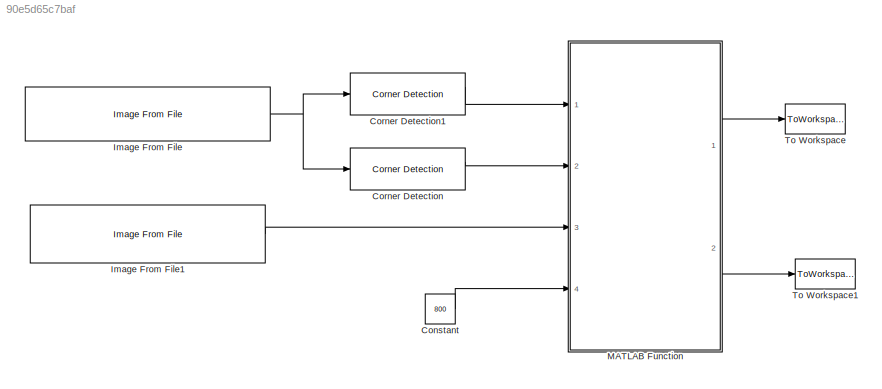
MODEL slx_90e5d65c7baf
KIND model
BLOCK [Constant] Constant
  Value = 800
BLOCK [Reference] Corner Detection  REF=visionanalysis/Corner Detection
  LockScale = off
  Ports = [1, 2]
  SourceBlock = visionanalysis/Corner Detection
  SourceType = Corner Detection
  accumFracLength = 0
  accumMode = Binary point scaling
  accumWordLength = 32
  factor = 0.04
  filter = fspecial('gaussian', [1 5], 1.5)
  firstCoeffFracLength = 16
  firstCoeffMode = Specify word length
  firstCoeffWordLength = 16
  isOutVarDim = off
  maxNum = 50
  memoryFracLength = 0
  memoryMode = Binary point scaling
  memoryWordLength = 32
  method = Minimum eigenvalue (Shi & Tomasi)
  neighborSize = [11 11]
  output = Obsolete9b
  outputFracLength = 0
  outputInUse = Corner location
  outputMode = Same as accumulator
  outputWordLength = 32
  overflowMode = off
  prodOutputFracLength = 0
  prodOutputMode = Binary point scaling
  prodOutputWordLength = 32
  roundingMode = Floor
  thrAngle = 157.5
  thrInten = 0.1
  thrMetric = 0.0005
BLOCK [Reference] Corner Detection1  REF=visionanalysis/Corner Detection
  LockScale = off
  Ports = [1, 2]
  SourceBlock = visionanalysis/Corner Detection
  SourceType = Corner Detection
  accumFracLength = 0
  accumMode = Binary point scaling
  accumWordLength = 32
  factor = 0.04
  filter = fspecial('gaussian', [1 5], 1.5)
  firstCoeffFracLength = 16
  firstCoeffMode = Specify word length
  firstCoeffWordLength = 16
  isOutVarDim = off
  maxNum = 50
  memoryFracLength = 0
  memoryMode = Binary point scaling
  memoryWordLength = 32
  method = Minimum eigenvalue (Shi & Tomasi)
  neighborSize = [11 11]
  output = Obsolete9b
  outputFracLength = 0
  outputInUse = Corner location
  outputMode = Same as accumulator
  outputWordLength = 32
  overflowMode = off
  prodOutputFracLength = 0
  prodOutputMode = Binary point scaling
  prodOutputWordLength = 32
  roundingMode = Floor
  thrAngle = 157.5
  thrInten = 0.1
  thrMetric = 0.0005
BLOCK [Reference] Image From File  REF=visionsources/Image From File
  FileName = <path>
  FractionLength = 15
  FractionLengthMode = User-defined
  ImageDataType = Inherit from input image
  OutPortLabels = R|G|B
  Ports = [0, 1]
  Signed = on
  SourceBlock = visionsources/Image From File
  SourceType = Image From File
  Tag = vipblks_nd
  Ts = inf
  WordLength = 16
  imagePorts = One multidimensional signal
  sdImageDataType = uint(8)
BLOCK [Reference] Image From File1  REF=visionsources/Image From File
  FileName = <path>
  FractionLength = 15
  FractionLengthMode = User-defined
  ImageDataType = Inherit from input image
  OutPortLabels = R|G|B
  Ports = [0, 1]
  Signed = on
  SourceBlock = visionsources/Image From File
  SourceType = Image From File
  Tag = vipblks_nd
  Ts = inf
  WordLength = 16
  imagePorts = One multidimensional signal
  sdImageDataType = uint(8)
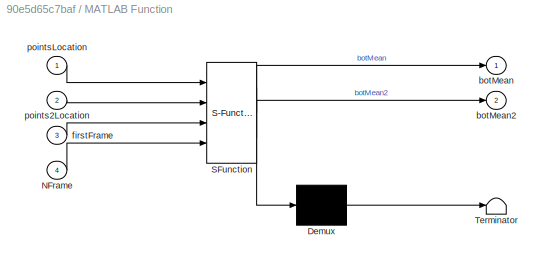
BLOCK [SubSystem] MATLAB Function
  ErrorFcn = Stateflow.Translate.translate
  PermitHierarchicalResolution = ExplicitOnly
  Ports = [4, 2]
  RequestExecContextInheritance = off
  SFBlockType = MATLAB Function
  TreatAsAtomicUnit = on
BLOCK [Demux] MATLAB Function/ Demux 
  Outputs = 1
  Ports = [1, 1]
BLOCK [S-Function] MATLAB Function/ SFunction 
  EnableBusSupport = on
  FunctionName = sf_sfun
  PortCounts = [4 3]
  Ports = [4, 3]
  Tag = Stateflow S-Function KLTTry 2
BLOCK [Terminator] MATLAB Function/ Terminator 
BLOCK [Inport] MATLAB Function/NFrame
  IconDisplay = Port number
  Port = 4
BLOCK [Outport] MATLAB Function/botMean
  IconDisplay = Port number
BLOCK [Outport] MATLAB Function/botMean2
  IconDisplay = Port number
  Port = 2
BLOCK [Inport] MATLAB Function/firstFrame
  IconDisplay = Port number
  Port = 3
BLOCK [Inport] MATLAB Function/points2Location
  IconDisplay = Port number
  Port = 2
BLOCK [Inport] MATLAB Function/pointsLocation
  IconDisplay = Port number
BLOCK [ToWorkspace] To Workspace
  FixptAsFi = on
  MaxDataPoints = inf
  Ports = [1]
  SampleTime = -1
  Save2DSignal = 3-D array (concatenate along third dimension)
  SaveFormat = Timeseries
  VariableName = botMean
BLOCK [ToWorkspace] To Workspace1
  FixptAsFi = on
  MaxDataPoints = inf
  Ports = [1]
  SampleTime = -1
  Save2DSignal = 3-D array (concatenate along third dimension)
  SaveFormat = Timeseries
  VariableName = botMean2
LINE Constant:1 -> MATLAB Function:4
LINE Corner Detection1:1 -> MATLAB Function:1
LINE Corner Detection:1 -> MATLAB Function:2
LINE Image From File1:1 -> MATLAB Function:3
NET Image From File:1 -> Corner Detection1:1, Corner Detection:1
LINE MATLAB Function:1 -> To Workspace:1
LINE MATLAB Function:2 -> To Workspace1:1
note: NET lines group one-source signal fan-out (src -> all destinations, sorted); 1:1 wires keep LINE
CHART MATLAB Function states=1 transitions=1
  STATE_LABEL 'eML_blk_kernel()'
  STATE_LABEL 'SCRIPT:\nfunction [botMean, botMean2] = fcn(pointsLocation, points2Location, firstFrame, NFrame)\n%#codegen\n[botMean, botMean2] = KLTTrackerParallel(pointsLocation, points2Location, firstFrame, NFrame);\nend'
note: 2 file-system paths scrubbed to <path> (not preserved elsewhere — flat text is the only slx artifact)
